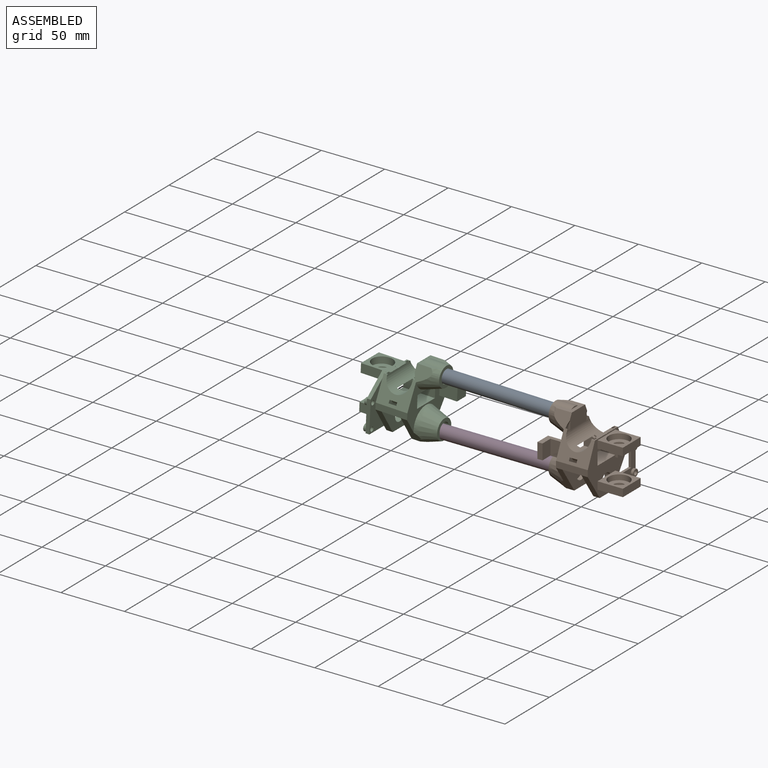
[diagram: assembled view]
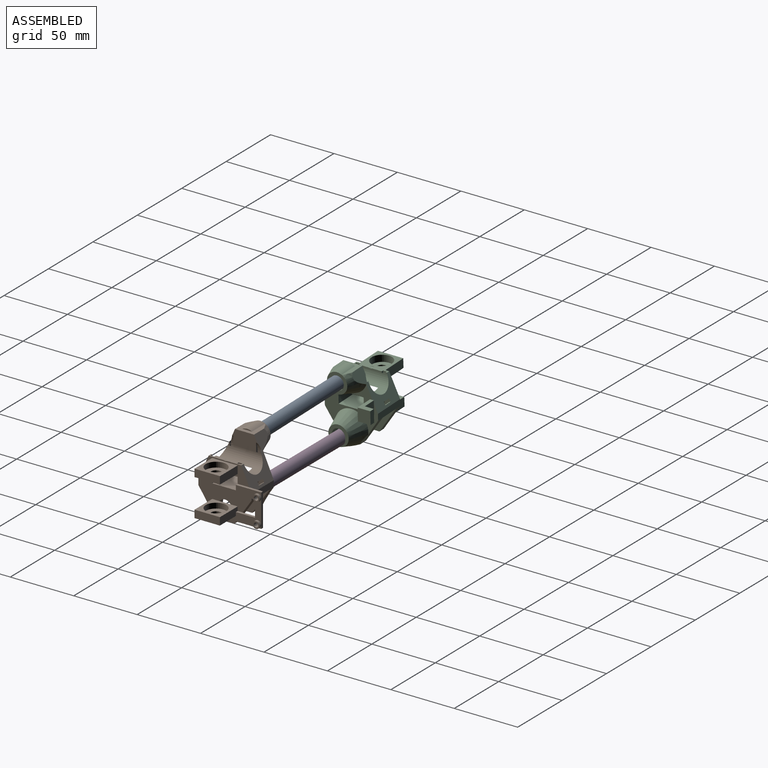
[diagram: assembled view, second angle]
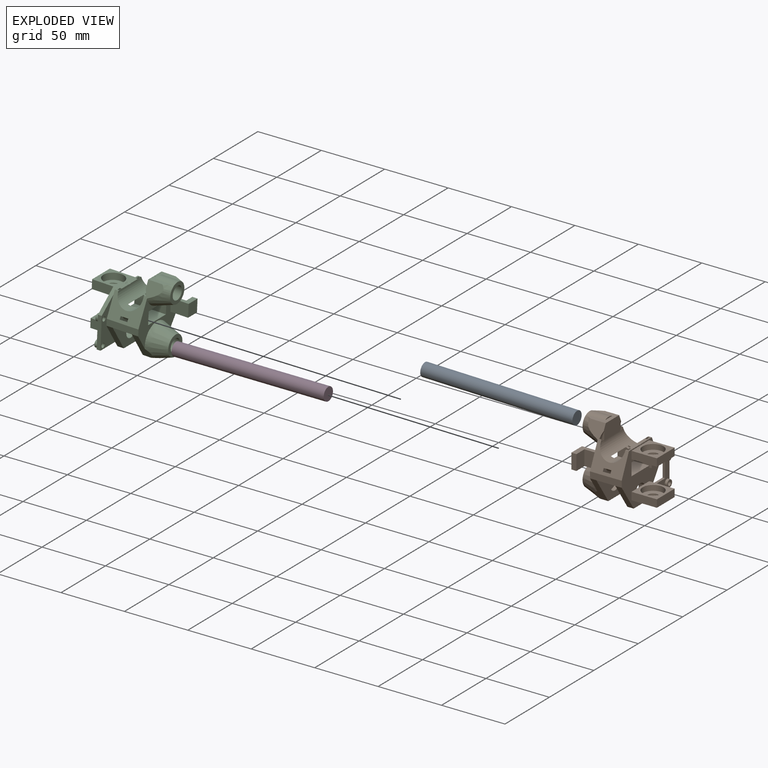
[diagram: exploded view]
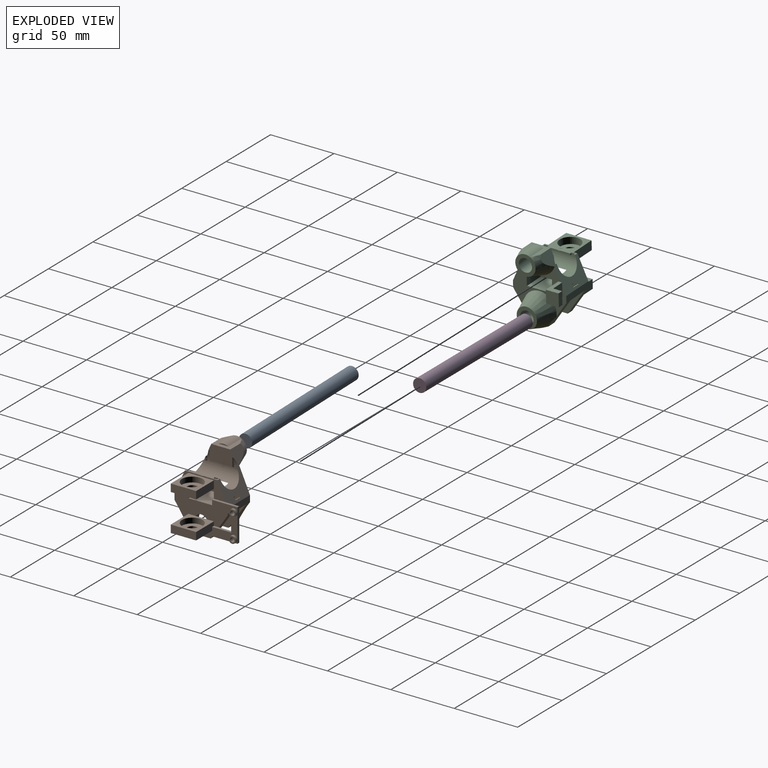
[diagram: exploded view, second angle]
ASSEMBLY  parts=4 mates=3
PART A: 3 faces, bbox 10.4x10.4x120 mm
  f0: cylinder r=5.2mm len=120mm, axis (0,0,-1), area 3920.7mm2, adj f1,f2
  f1: plane 10.4x10.4mm, normal (0,0,1), area 84.9mm2, adj f0
  f2: plane 10.4x10.4mm, normal (0,0,-1), area 84.9mm2, adj f0
PART B: 107 faces, bbox 65.8x57.8x68.2 mm
  f0: plane 42x36.2mm, normal (-1,0,0), area 535.4mm2, adj f5,f6,f7,f8,f9,f19,f20,f32
  f1: plane 26x20mm, normal (1,0,0), area 278.1mm2, adj f8,f78,f86,f88,f89,f90,f91,f92
  f2: plane 43x42mm, normal (1,0,0), area 843.7mm2, adj f5,f6,f7,f8,f9,f19,f20,f24
  f3: cylinder r=4mm len=8mm, axis (0,0,1), area 46.5mm2, adj f77,f84
  f4: cylinder r=4mm len=8mm, axis (0,0,1), area 46.5mm2, adj f73,f82
  f5: plane 25x5mm, normal (0,1,0), area 125mm2, adj f0,f2,f20,f21,f29,f32,f52,f87
  f6: plane 25x5mm, normal (0,-1,0), area 125mm2, adj f0,f2,f19,f21,f30,f34,f56
  f7: plane 39x12mm, normal (0,1,0), area 384.7mm2, adj f0,f2,f9,f49,f60,f61,f101,f103
  f8: plane 27x11.5mm, normal (0,-1,0), area 226.6mm2, adj f0,f1,f2,f9,f16,f60,f61,f90
  f9: plane 25x20mm, normal (0,0,1), area 500mm2, adj f0,f2,f7,f8
  f10: cylinder r=5.2mm len=16.96mm, axis (1,0,0), area 552.4mm2, adj f42,f70
  f11: plane 18.61x15.61mm, normal (0,0,1), area 117.1mm2, adj f19,f20,f25,f41,f43,f63,f66,f68
  f12: cylinder r=5.2mm len=10.4mm, axis (1,0,0), area 36.4mm2, adj f37,f44,f65
  f13: plane 15.83x6.31mm, normal (0,-1,0), area 25.6mm2, adj f22,f25,f47,f48,f49,f61
  f14: plane 9x6.31mm, normal (0,-1,0), area 17.3mm2, adj f22,f27,f47,f49,f60
  f15: extruded ~19.5x10.8mm, area 85.2mm2, adj f17,f18,f22,f23,f51,f60,f61
  f16: extruded ~23x18.95mm, area 110.7mm2, adj f8,f17,f18,f20,f24,f25,f51,f60
  f17: plane 9x6.03mm, normal (0,1,0), area 17.2mm2, adj f15,f16,f22,f24,f60
  f18: plane 15.62x6.03mm, normal (0,1,0), area 25.1mm2, adj f15,f16,f22,f25,f61
  f19: plane 34.92x30.09mm, normal (0,-0.91,0.41), area 432.8mm2, adj f0,f2,f6,f11,f22,f25,f27,f49
  f20: plane 34.92x30.08mm, normal (0,0.91,0.41), area 433.2mm2, adj f0,f2,f5,f11,f16,f22,f24,f25
  f21: plane 42x15mm, normal (0,0,-1), area 571.5mm2, adj f5,f6,f39,f40,f53,f54,f55,f57
  f22: cylinder r=9.75mm len=34.6mm, axis (0,-1,0), area 804.3mm2, adj f13,f14,f15,f17,f18,f19,f20,f23
  f23: plane 10.94x1.85mm, normal (0,-1,0), area 10mm2, adj f15,f22,f60,f61
  f24: plane 11.47x2.75mm, normal (0,0,1), area 26.3mm2, adj f2,f16,f17,f20,f22,f36,f51
  f25: plane 22.75x12.22mm, normal (1,0,-0.02), area 212.1mm2, adj f11,f13,f16,f18,f19,f20,f22,f48
  f26: plane 10.38x1.65mm, normal (0,1,0), area 7.8mm2, adj f22,f47,f60,f61
  f27: plane 11.47x2.75mm, normal (0,0,1), area 26.3mm2, adj f2,f14,f19,f22,f36,f49,f50
  f28: plane 15x14mm, normal (0,0,-1), area 170.8mm2, adj f32,f34,f40,f62
  f29: plane 20x13.5mm, normal (0,0.83,-0.56), area 120.6mm2, adj f2,f5,f33,f39,f87
  f30: plane 20x13.5mm, normal (0,-0.83,-0.56), area 120.6mm2, adj f2,f6,f33,f39
  f31: cylinder r=5.2mm len=10.4mm, axis (1,0,0), area 163.4mm2, adj f2,f39,f81
  f32: plane 25.77x19.27mm, normal (0,0.83,-0.56), area 145.2mm2, adj f0,f5,f28,f40,f62
  f33: plane 15x5mm, normal (0,0,-1), area 75mm2, adj f2,f29,f30,f39
  f34: plane 25.77x19.27mm, normal (0,-0.83,-0.56), area 145.2mm2, adj f0,f6,f28,f40,f62
  f35: cylinder r=5.2mm len=10.4mm, axis (1,0,0), area 92.5mm2, adj f40,f64
  f36: cylinder r=5.2mm len=2.86mm, axis (1,0,0), area 8mm2, adj f2,f22,f24,f27
  f37: plane 10.4x5.24mm, normal (-1,0,0), area 0.5mm2, adj f12,f45
  f38: plane 1.8x0.81mm, normal (1,0,-0.02), area 0.7mm2, adj f20,f22,f51
  f39: plane 42x20mm, normal (-1,0,0), area 485.1mm2, adj f21,f29,f30,f31,f33
  f40: plane 42x20mm, normal (1,0,0), area 485.1mm2, adj f21,f28,f32,f34,f35
  f41: cylinder r=8mm len=15mm, axis (1,0,0), area 119.8mm2, adj f11,f42,f43
  f42: plane 16x16mm, normal (-1,0,0), area 116.1mm2, adj f10,f41,f63
  f43: plane 7.66x0.98mm, normal (1,0,0), area 5.1mm2, adj f11,f41
  f44: plane 10.4x5.24mm, normal (1,0,0), area 0.5mm2, adj f12,f45
  f45: cylinder r=5.2mm len=15mm, axis (1,0,0), area 490.1mm2, adj f37,f44,f46
  f46: plane 16x16mm, normal (-1,0,0), area 116.1mm2, adj f45,f62
  f47: extruded ~19.4x9.68mm, area 79.1mm2, adj f13,f14,f22,f26,f50,f60,f61
  f48: extruded ~3x0.54mm, area 1.6mm2, adj f13,f22,f25,f50
  f49: extruded ~23x18.96mm, area 110.2mm2, adj f7,f13,f14,f19,f25,f27,f50,f60
  f50: plane 23x14.15mm, normal (0,1,0), area 59.7mm2, adj f19,f22,f25,f27,f47,f48,f49
  f51: plane 23x14.35mm, normal (0,-1,0), area 60.4mm2, adj f15,f16,f20,f22,f24,f38
  f52: cylinder r=3.5mm len=6.89mm, axis (-1,0,0), area 60.8mm2, adj f5,f20,f54,f55
  f53: cylinder r=6mm len=9.2mm, axis (-1,0,0), area 67.4mm2, adj f20,f21,f54,f55
  f54: plane 9.2x6mm, normal (-1,0,0), area 25.3mm2, adj f20,f21,f52,f53
  f55: plane 9.2x6mm, normal (1,0,0), area 25.3mm2, adj f20,f21,f52,f53
  f56: cylinder r=3.5mm len=6.89mm, axis (-1,0,0), area 60.8mm2, adj f6,f19,f58,f59
  f57: cylinder r=6mm len=9.2mm, axis (-1,0,0), area 67.4mm2, adj f19,f21,f58,f59
  f58: plane 9.2x6mm, normal (-1,0,0), area 25.3mm2, adj f19,f21,f56,f57
  f59: plane 9.2x6mm, normal (1,0,0), area 25.3mm2, adj f19,f21,f56,f57
  f60: plane 20x8.75mm, normal (0,0,-1), area 170.1mm2, adj f2,f7,f8,f14,f15,f16,f17,f22
  f61: plane 20x8.75mm, normal (0,0,-1), area 170.1mm2, adj f0,f7,f8,f13,f15,f16,f18,f22
  f62: cone r=8mm half-angle=18.4deg, axis (1,0,0), area 920.9mm2, adj f0,f28,f32,f34,f46
  f63: cone r=8mm half-angle=18.4deg, axis (1,0,0), area 594.9mm2, adj f0,f11,f19,f20,f42
  f64: plane 10.83x10.83mm, normal (1,0,-0.02), area 85mm2, adj f35
  f65: plane 10.69x10.69mm, normal (-1,0,0.02), area 85mm2, adj f12
  f66: plane 14.62x0.02mm, normal (-1,0,0.02), area 0.3mm2, adj f11,f67,f68,f69
  f67: plane 1x0.02mm, normal (0,-1,0), area 0mm2, adj f19,f66,f69
  f68: plane 1x0.02mm, normal (0,1,0), area 0mm2, adj f11,f66,f69
  f69: plane 14.62x1mm, normal (0.02,0,1), area 14.6mm2, adj f25,f66,f67,f68
  f70: plane 10.69x10.69mm, normal (-1,0,0.02), area 85mm2, adj f10
  f71: plane 20x20mm, normal (0,0,1), area 191.3mm2, adj f2,f72,f74,f75,f83
  f72: plane 20x6mm, normal (0,-1,0), area 120mm2, adj f2,f71,f73,f75
  f73: plane 20x20mm, normal (0,0,-1), area 349.7mm2, adj f2,f4,f72,f74,f75
  f74: plane 20x6mm, normal (0,1,0), area 120mm2, adj f2,f71,f73,f75
  f75: plane 20x6mm, normal (1,0,0), area 120mm2, adj f71,f72,f73,f74
  f76: plane 20x6mm, normal (0,-1,0), area 120mm2, adj f2,f77,f79,f80
  f77: plane 20x20mm, normal (0,0,-1), area 349.7mm2, adj f2,f3,f76,f78,f80,f81,f86
  f78: plane 20x6mm, normal (0,1,0), area 114.4mm2, adj f1,f2,f77,f79,f80,f94
  f79: plane 20x20mm, normal (0,0,1), area 191.3mm2, adj f2,f76,f78,f80,f81,f85
  f80: plane 20x6mm, normal (1,0,0), area 120mm2, adj f76,f77,f78,f79
  f81: plane 10.4x6mm, normal (-1,0,0), area 58.7mm2, adj f31,f77,f79
  f82: plane 16.3x16.3mm, normal (0,0,1), area 158.4mm2, adj f4,f83
  f83: cylinder r=8.15mm len=16.3mm, axis (0,0,1), area 212.5mm2, adj f71,f82
  f84: plane 16.3x16.3mm, normal (0,0,1), area 158.4mm2, adj f3,f85
  f85: cylinder r=8.15mm len=16.3mm, axis (0,0,1), area 212.5mm2, adj f79,f84
  f86: plane 3.9x2mm, normal (0,-1,0), area 7.8mm2, adj f1,f2,f77,f87,f88
  f87: plane 26x20mm, normal (-1,0,0), area 229.1mm2, adj f5,f20,f29,f86,f88,f89,f90,f91
  f88: plane 20x2mm, normal (0,0,-1), area 40mm2, adj f1,f86,f87,f89,f96
  f89: plane 26x2mm, normal (0,1,0), area 52mm2, adj f1,f87,f88,f90,f96
  f90: plane 20x2mm, normal (0,0,1), area 40mm2, adj f1,f2,f8,f87,f89
  f91: plane 15.04x2mm, normal (0,0,-1), area 30.1mm2, adj f1,f2,f8,f87,f92
  f92: plane 12.82x2mm, normal (0,-1,0), area 25.6mm2, adj f1,f87,f91,f94
  f93: cylinder r=1.7mm len=4mm, axis (-1,0,0), area 42.7mm2, adj f87,f98
  f94: plane 15.04x2mm, normal (0,0,1), area 30.1mm2, adj f1,f2,f78,f87,f92
  f95: cylinder r=1.7mm len=4mm, axis (-1,0,0), area 42.7mm2, adj f87,f100
  f96: plane 2.75x2.75mm, normal (1,0,0), area 1.6mm2, adj f88,f89,f99
  f97: cylinder r=2.75mm len=5.49mm, axis (-1,0,0), area 34.5mm2, adj f1,f98
  f98: plane 5.49x5.49mm, normal (1,0,0), area 14.6mm2, adj f93,f97
  f99: cylinder r=2.75mm len=5.5mm, axis (-1,0,0), area 34.6mm2, adj f1,f96,f100
  f100: plane 5.5x5.5mm, normal (1,0,0), area 14.7mm2, adj f95,f99
  f101: plane 14x12mm, normal (0,0,-1), area 78mm2, adj f0,f7,f102,f104,f105,f106
  f102: plane 12x10mm, normal (0,-1,0), area 120mm2, adj f0,f101,f103,f106
  f103: plane 14x12mm, normal (0,0,1), area 78mm2, adj f0,f7,f102,f104,f105,f106
  f104: plane 12x4mm, normal (0,-1,0), area 48mm2, adj f101,f103,f105,f106
  f105: plane 12x12mm, normal (-1,0,0), area 144mm2, adj f7,f101,f103,f104
  f106: plane 12x9mm, normal (1,0,0), area 108mm2, adj f101,f102,f103,f104
PART C: 109 faces, bbox 65.8x57.3x68.1 mm
  f0: cylinder r=5.2mm len=16.17mm, axis (1,0,0), area 526.5mm2, adj f41,f108
  f1: cylinder r=5.2mm len=16.96mm, axis (1,0,0), area 552.4mm2, adj f39,f106
  f2: plane 18.59x15.59mm, normal (0,0,1), area 118.3mm2, adj f11,f12,f18,f38,f40,f100,f102,f103
  f3: plane 39x16.5mm, normal (1,0,0), area 480.5mm2, adj f7,f9,f64,f86,f87,f88,f91,f93
  f4: plane 25.8x22.75mm, normal (0,0,1), area 245.4mm2, adj f9,f11,f12,f16,f26,f34,f44,f46
  f5: plane 39x16.5mm, normal (-1,0,0), area 509.5mm2, adj f7,f8,f68,f86,f87,f88,f89,f90
  f6: plane 2.75x2.75mm, normal (1,0,0), area 1.6mm2, adj f7,f88,f93
  f7: plane 25.09x3mm, normal (0,1,0), area 75.3mm2, adj f3,f5,f6,f88,f91
  f8: plane 7x0.25mm, normal (0,1,0), area 1.7mm2, adj f5,f26,f63,f65
  f9: plane 16.75x7mm, normal (0,1,0), area 117.2mm2, adj f3,f4,f67,f70
  f10: plane 42x36.21mm, normal (-1,0,0), area 543.2mm2, adj f11,f12,f14,f24,f25,f27,f28,f29
  f11: plane 34.93x30.07mm, normal (0,-0.91,0.41), area 434.1mm2, adj f2,f4,f10,f16,f18,f25,f26,f44
  f12: plane 34.93x30.06mm, normal (0,0.91,0.41), area 434.5mm2, adj f2,f4,f10,f16,f18,f24,f26,f35
  f13: plane 42x15mm, normal (0,0,-1), area 571.5mm2, adj f24,f25,f36,f37,f54,f55,f56,f58
  f14: plane 20x8.75mm, normal (0,0,-1), area 170.4mm2, adj f10,f16,f17,f19,f27,f29,f42,f44
  f15: plane 20x8.75mm, normal (0,0,-1), area 170.4mm2, adj f16,f17,f19,f26,f27,f29,f42,f44
  f16: cylinder r=9.75mm len=34.6mm, axis (0,-1,0), area 804.3mm2, adj f4,f11,f12,f14,f15,f17,f18,f19
  f17: plane 10.94x1.85mm, normal (0,-1,0), area 10mm2, adj f14,f15,f16,f48
  f18: plane 22.91x12.22mm, normal (1,0,-0.02), area 212.8mm2, adj f2,f11,f12,f16,f43,f44,f45,f47
  f19: plane 10.38x1.65mm, normal (0,1,0), area 7.8mm2, adj f14,f15,f16,f42
  f20: plane 15x14mm, normal (0,0,-1), area 170.8mm2, adj f30,f32,f37,f101
  f21: plane 20x13.5mm, normal (0,0.83,-0.56), area 120.6mm2, adj f24,f26,f31,f36
  f22: plane 20x13.5mm, normal (0,-0.83,-0.56), area 120.6mm2, adj f25,f26,f31,f36
  f23: cylinder r=5.2mm len=10.4mm, axis (1,0,0), area 163.4mm2, adj f26,f36,f61
  f24: plane 25x5mm, normal (0,1,0), area 125mm2, adj f10,f12,f13,f21,f26,f30,f53
  f25: plane 25x5mm, normal (0,-1,0), area 125mm2, adj f10,f11,f13,f22,f26,f32,f57
  f26: plane 43x42mm, normal (1,0,0), area 887.6mm2, adj f4,f8,f11,f12,f15,f21,f22,f23
  f27: plane 25x10mm, normal (0,1,0), area 217.5mm2, adj f10,f14,f15,f26,f28,f44
  f28: plane 25x20mm, normal (0,0,1), area 500mm2, adj f10,f26,f27,f29
  f29: plane 25x10mm, normal (0,-1,0), area 214.4mm2, adj f10,f14,f15,f26,f28,f49
  f30: plane 25.77x19.27mm, normal (0,0.83,-0.56), area 145.2mm2, adj f10,f20,f24,f37,f101
  f31: plane 15x5mm, normal (0,0,-1), area 75mm2, adj f21,f22,f26,f36
  f32: plane 25.77x19.27mm, normal (0,-0.83,-0.56), area 145.2mm2, adj f10,f20,f25,f37,f101
  f33: cylinder r=5.2mm len=10.4mm, axis (1,0,0), area 92.5mm2, adj f37,f107
  f34: cylinder r=5.2mm len=2.86mm, axis (1,0,0), area 8mm2, adj f4,f16,f71
  f35: plane 1.8x0.81mm, normal (1,0,-0.02), area 0.7mm2, adj f12,f16,f52
  f36: plane 42x20mm, normal (-1,0,0), area 485.1mm2, adj f13,f21,f22,f23,f31
  f37: plane 42x20mm, normal (1,0,0), area 485.1mm2, adj f13,f20,f30,f32,f33
  f38: cylinder r=8mm len=15mm, axis (1,0,0), area 121.3mm2, adj f2,f39,f40
  f39: plane 16x16mm, normal (-1,0,0), area 116.1mm2, adj f1,f38,f100
  f40: plane 7.75x1mm, normal (1,0,0), area 5.2mm2, adj f2,f38
  f41: plane 16x16mm, normal (-1,0,0), area 116.1mm2, adj f0,f101
  f42: extruded ~19.4x9.68mm, area 79.1mm2, adj f14,f15,f16,f19,f45,f46,f47
  f43: extruded ~3x0.54mm, area 1.6mm2, adj f16,f18,f45,f47
  f44: extruded ~22.49x18.59mm, area 108.9mm2, adj f4,f11,f14,f15,f18,f27,f45,f46
  f45: plane 15.46x6.06mm, normal (0,-1,0), area 22mm2, adj f14,f16,f18,f42,f43,f44
  f46: plane 9x6.06mm, normal (0,-1,0), area 15.3mm2, adj f4,f15,f16,f42,f44
  f47: plane 22.5x14.15mm, normal (0,1,0), area 54.5mm2, adj f4,f11,f16,f18,f42,f43,f44
  f48: extruded ~19.5x10.8mm, area 85.2mm2, adj f14,f15,f16,f17,f50,f51,f52
  f49: extruded ~22.49x18.59mm, area 109.4mm2, adj f4,f12,f14,f15,f18,f29,f50,f51
  f50: plane 15.25x5.78mm, normal (0,1,0), area 21.6mm2, adj f14,f16,f18,f48,f49
  f51: plane 9x5.78mm, normal (0,1,0), area 15.1mm2, adj f4,f15,f16,f48,f49
  f52: plane 22.5x14.35mm, normal (0,-1,0), area 55.1mm2, adj f4,f12,f16,f35,f48,f49
  f53: cylinder r=3.5mm len=6.89mm, axis (-1,0,0), area 60.8mm2, adj f12,f24,f55,f56
  f54: cylinder r=6mm len=9.2mm, axis (-1,0,0), area 67.4mm2, adj f12,f13,f55,f56
  f55: plane 9.2x6mm, normal (-1,0,0), area 25.3mm2, adj f12,f13,f53,f54
  f56: plane 9.2x6mm, normal (1,0,0), area 25.3mm2, adj f12,f13,f53,f54
  f57: cylinder r=3.5mm len=6.89mm, axis (-1,0,0), area 60.8mm2, adj f11,f25,f59,f60
  f58: cylinder r=6mm len=9.2mm, axis (-1,0,0), area 67.4mm2, adj f11,f13,f59,f60
  f59: plane 9.2x6mm, normal (-1,0,0), area 25.3mm2, adj f11,f13,f57,f58
  f60: plane 9.2x6mm, normal (1,0,0), area 25.3mm2, adj f11,f13,f57,f58
  f61: plane 10.4x7mm, normal (-1,0,0), area 62.4mm2, adj f23,f63,f65
  f62: plane 20x7mm, normal (0,-1,0), area 140mm2, adj f26,f63,f65,f66
  f63: plane 20x20mm, normal (0,0,-1), area 349.7mm2, adj f8,f26,f61,f62,f64,f66,f76,f86
  f64: plane 16.75x7mm, normal (0,1,0), area 117.2mm2, adj f3,f63,f65,f66
  f65: plane 20x20mm, normal (0,0,1), area 188.8mm2, adj f8,f26,f61,f62,f64,f66,f74,f87
  f66: plane 20x7mm, normal (1,0,0), area 140mm2, adj f62,f63,f64,f65
  f67: plane 20x20mm, normal (0,0,-1), area 349.7mm2, adj f9,f26,f68,f69,f70,f77,f87
  f68: plane 7x0.25mm, normal (0,1,0), area 1.8mm2, adj f4,f5,f26,f67
  f69: plane 20x7mm, normal (0,-1,0), area 140mm2, adj f4,f26,f67,f70
  f70: plane 20x7mm, normal (1,0,0), area 140mm2, adj f4,f9,f67,f69
  f71: plane 2.86x0.2mm, normal (-1,0,0), area 0.4mm2, adj f4,f34
  f72: cylinder r=8.15mm len=16.3mm, axis (0,0,1), area 266.3mm2, adj f4,f73
  f73: plane 16.3x16.3mm, normal (0,0,1), area 158.4mm2, adj f72,f77
  f74: cylinder r=8.2mm len=16.4mm, axis (0,0,1), area 267.9mm2, adj f65,f75
  f75: plane 16.4x16.4mm, normal (0,0,1), area 161mm2, adj f74,f76
  f76: cylinder r=4mm len=8mm, axis (0,0,1), area 45.2mm2, adj f63,f75
  f77: cylinder r=4mm len=8mm, axis (0,0,1), area 45.2mm2, adj f67,f73
  f78: plane 10x10mm, normal (0,-1,0), area 100mm2, adj f10,f79,f81,f82,f85
  f79: plane 14x10mm, normal (0,0,1), area 70mm2, adj f10,f78,f80,f82,f83,f84,f85
  f80: plane 14x10mm, normal (0,1,0), area 140mm2, adj f10,f79,f81,f84
  f81: plane 14x10mm, normal (0,0,-1), area 70mm2, adj f10,f78,f80,f83,f84,f85
  f82: plane 2.33x1.05mm, normal (1,0,0), area 1.2mm2, adj f11,f78,f79
  f83: plane 10x4mm, normal (0,-1,0), area 40mm2, adj f79,f81,f84,f85
  f84: plane 10x10mm, normal (-1,0,0), area 100mm2, adj f79,f80,f81,f83
  f85: plane 10x7mm, normal (1,0,0), area 70mm2, adj f78,f79,f81,f83
  f86: plane 4x3mm, normal (0,-1,0), area 12mm2, adj f3,f5,f63,f88
  f87: plane 21x3mm, normal (0,-1,0), area 63mm2, adj f3,f5,f65,f67
  f88: plane 16.5x3mm, normal (0,0,-1), area 49.5mm2, adj f3,f5,f6,f7,f86
  f89: cylinder r=1.75mm len=3.5mm, axis (1,0,0), area 33mm2, adj f5,f99
  f90: cylinder r=1.75mm len=3.5mm, axis (1,0,0), area 33mm2, adj f5,f95
  f91: plane 16.5x13.91mm, normal (0,0.64,0.76), area 64.7mm2, adj f3,f4,f5,f7
  f92: cylinder r=1.7mm len=3.4mm, axis (-1,0,0), area 21.4mm2, adj f94,f95
  f93: cylinder r=2.75mm len=5.5mm, axis (-1,0,0), area 34.6mm2, adj f3,f6,f94
  f94: plane 5.5x5.5mm, normal (1,0,0), area 14.7mm2, adj f92,f93
  f95: plane 3.5x3.5mm, normal (-1,0,0), area 0.5mm2, adj f90,f92
  f96: cylinder r=1.7mm len=3.4mm, axis (-1,0,0), area 21.4mm2, adj f98,f99
  f97: cylinder r=2.7mm len=5.4mm, axis (-1,0,0), area 33.9mm2, adj f3,f98
  f98: plane 5.4x5.4mm, normal (1,0,0), area 13.8mm2, adj f96,f97
  f99: plane 3.5x3.5mm, normal (-1,0,0), area 0.5mm2, adj f89,f96
  f100: cone r=8mm half-angle=18.4deg, axis (1,0,0), area 593.6mm2, adj f2,f10,f11,f12,f39
  f101: cone r=8mm half-angle=18.4deg, axis (1,0,0), area 920.9mm2, adj f10,f20,f30,f32,f41
  f102: plane 12.49x0.02mm, normal (-1,0,0.02), area 0.3mm2, adj f2,f103,f104,f105
  f103: plane 1x0.02mm, normal (0,-1,0), area 0mm2, adj f2,f102,f105
  f104: plane 1x0.02mm, normal (0,1,0), area 0mm2, adj f2,f102,f105
  f105: plane 12.49x1mm, normal (0.02,0,1), area 12.5mm2, adj f18,f102,f103,f104
  f106: plane 10.69x10.69mm, normal (-1,0,0.02), area 85mm2, adj f1
  f107: plane 10.83x10.83mm, normal (1,0,-0.02), area 85mm2, adj f33
  f108: plane 10.69x10.69mm, normal (-1,0,0.02), area 85mm2, adj f0
PART D: same geometry as A
PLACE A rot(axis=(0,1,0),91.2deg) t=(-136.45,18.9,42.05)mm
PLACE B t=(6.68,-2.1,11.55)mm
PLACE C rot(axis=(-0.02,0,-1),180deg) t=(-160.74,39.9,15.03)mm
PLACE D rot(axis=(0,1,0),90deg) t=(-138.32,18.9,1.5)mm
MATE fastened C.f106 <-> A.f0  axis (1,0,-0.02) through (-136.45,18.9,42.05)mm
MATE fastened A.f0 <-> B.f70  axis (1,0,-0.02) through (-16.47,18.9,39.55)mm
MATE fastened D.f0 <-> B.f45  axis (1,0,0) through (-18.32,18.9,1.5)mm
